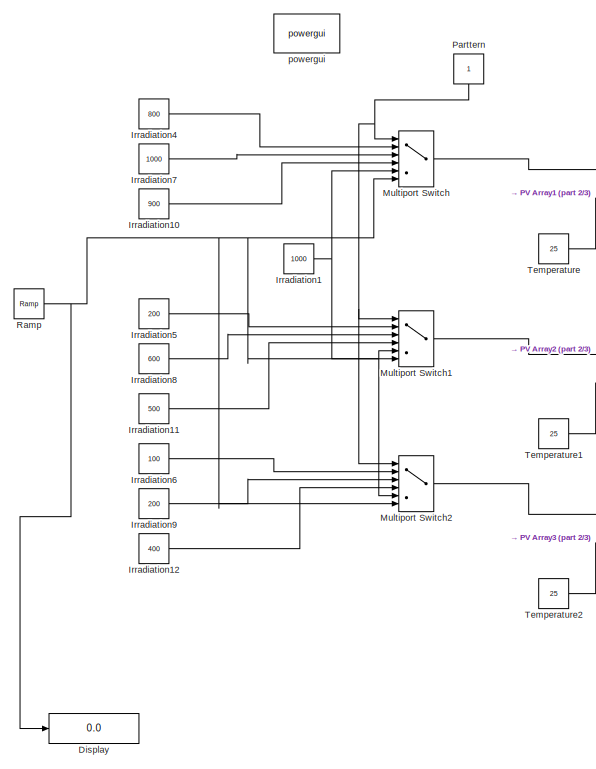
[diagram: root canvas - part 1/3, left side, full height]
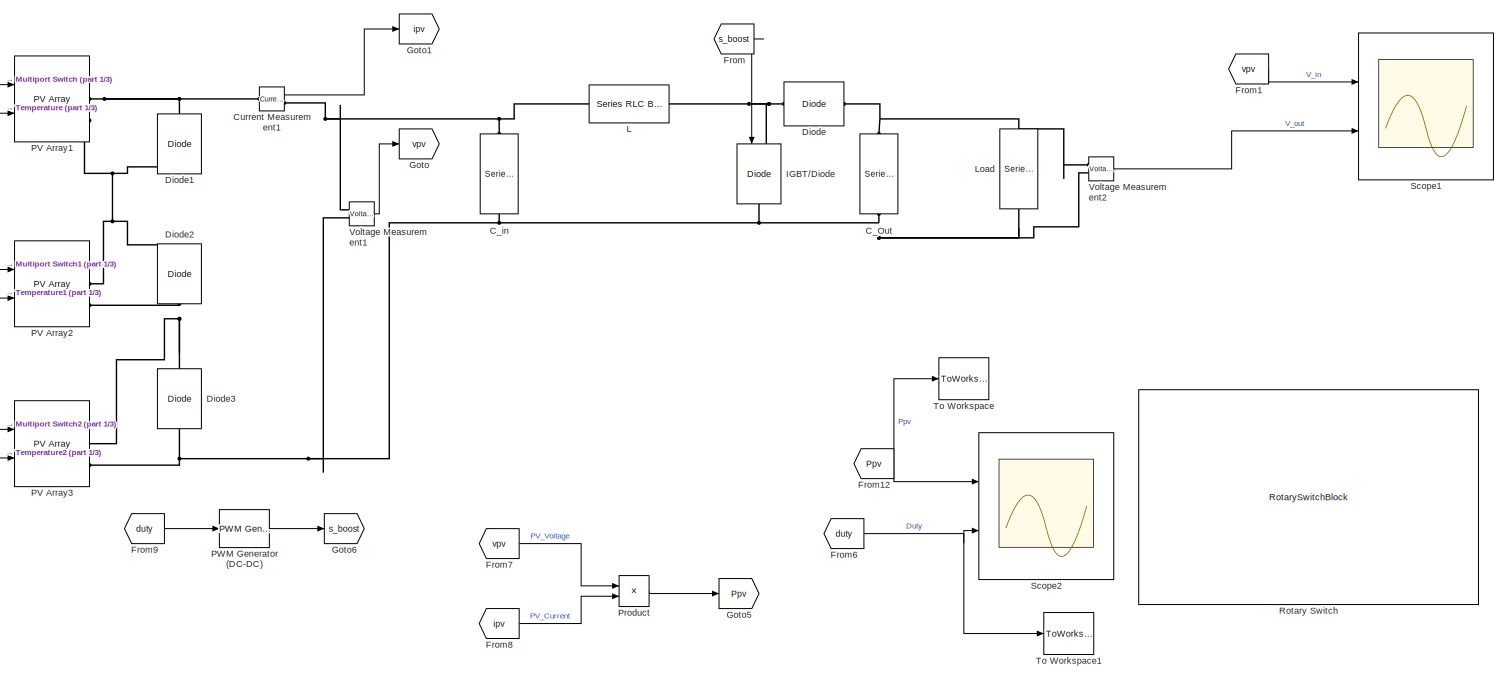
[diagram: root canvas - part 2/3, center side, full height]
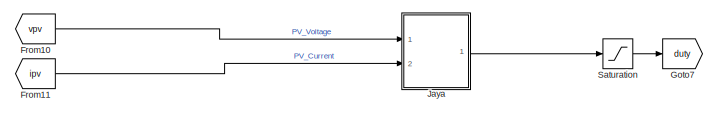
[diagram: root canvas - part 3/3, bottom center region]
MODEL slx_bde8f6ef2857
KIND model
CONFIG AbsTol = auto
CONFIG EnableMultiTasking = off
CONFIG FixedStep = auto
CONFIG MaxStep = auto
CONFIG MinStep = auto
CONFIG RelTol = 1e-4
CONFIG SampleTimeConstraint = Unconstrained
CONFIG Solver = VariableStepAuto
CONFIG SolverName = VariableStepAuto
CONFIG StartTime = 0.0
CONFIG StopTime = 0.3
BLOCK [Reference] C_Out  REF=powerlib/Elements/Series RLC Branch
  NameLocation = left
  Ports = [0, 0, 0, 0, 0, 1, 1]
  SourceBlock = powerlib/Elements/Series RLC Branch
  SourceProductBaseCode = PS
  SourceType = Series RLC Branch
BLOCK [Reference] C_in  REF=powerlib/Elements/Series RLC Branch
  NameLocation = left
  Ports = [0, 0, 0, 0, 0, 1, 1]
  SourceBlock = powerlib/Elements/Series RLC Branch
  SourceProductBaseCode = PS
  SourceType = Series RLC Branch
BLOCK [Reference] Current Measurement1  REF=powerlib/Measurements/Current Measurement
  Ports = [0, 1, 0, 0, 0, 1, 1]
  SourceBlock = powerlib/Measurements/Current Measurement
  SourceProductBaseCode = PS
  SourceType = Current Measurement
  UserDataPersistent = on
BLOCK [Reference] Diode  REF=powerlib/Power
Electronics/Diode
  Ports = [0, 0, 0, 0, 0, 1, 1]
  SourceBlock = powerlib/Power\nElectronics/Diode
  SourceProductBaseCode = PS
  SourceType = Diode
BLOCK [Reference] Diode1  REF=powerlib/Power
Electronics/Diode
  NameLocation = right
  Ports = [0, 0, 0, 0, 0, 1, 1]
  SourceBlock = powerlib/Power\nElectronics/Diode
  SourceProductBaseCode = PS
  SourceType = Diode
BLOCK [Reference] Diode2  REF=powerlib/Power
Electronics/Diode
  NameLocation = right
  Ports = [0, 0, 0, 0, 0, 1, 1]
  SourceBlock = powerlib/Power\nElectronics/Diode
  SourceProductBaseCode = PS
  SourceType = Diode
BLOCK [Reference] Diode3  REF=powerlib/Power
Electronics/Diode
  NameLocation = right
  Ports = [0, 0, 0, 0, 0, 1, 1]
  SourceBlock = powerlib/Power\nElectronics/Diode
  SourceProductBaseCode = PS
  SourceType = Diode
BLOCK [Display] Display
  Decimation = 1
  Ports = [1]
BLOCK [From] From
  GotoTag = s_boost
  TagVisibility = global
BLOCK [From] From1
  GotoTag = vpv
  TagVisibility = global
BLOCK [From] From10
  GotoTag = vpv
  TagVisibility = global
BLOCK [From] From11
  GotoTag = ipv
  TagVisibility = global
BLOCK [From] From12
  GotoTag = Ppv
  TagVisibility = global
BLOCK [From] From6
  GotoTag = duty
  TagVisibility = global
BLOCK [From] From7
  GotoTag = vpv
  TagVisibility = global
BLOCK [From] From8
  GotoTag = ipv
  TagVisibility = global
BLOCK [From] From9
  GotoTag = duty
  TagVisibility = global
BLOCK [Goto] Goto
  GotoTag = vpv
  TagVisibility = global
BLOCK [Goto] Goto1
  GotoTag = ipv
  TagVisibility = global
BLOCK [Goto] Goto5
  GotoTag = Ppv
  TagVisibility = global
BLOCK [Goto] Goto6
  GotoTag = s_boost
  TagVisibility = global
BLOCK [Goto] Goto7
  GotoTag = duty
  TagVisibility = global
BLOCK [Reference] IGBT//Diode  REF=powerlib/Power
Electronics/IGBT//Diode
  NameLocation = left
  Ports = [1, 0, 0, 0, 0, 1, 1]
  SourceBlock = powerlib/Power\nElectronics/IGBT//Diode
  SourceProductBaseCode = PS
  SourceType = IGBT/Diode
BLOCK [Constant] Irradiation1
  Value = 1000
BLOCK [Constant] Irradiation10
  Value = 900
BLOCK [Constant] Irradiation11
  Value = 500
BLOCK [Constant] Irradiation12
  Value = 400
BLOCK [Constant] Irradiation4
  Value = 800
BLOCK [Constant] Irradiation5
  Value = 200
BLOCK [Constant] Irradiation6
  Value = 100
BLOCK [Constant] Irradiation7
  Value = 1000
BLOCK [Constant] Irradiation8
  Value = 600
BLOCK [Constant] Irradiation9
  Value = 200
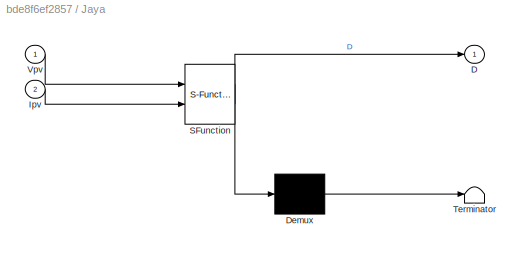
BLOCK [SubSystem] Jaya
  ErrorFcn = Stateflow.Translate.translate
  PermitHierarchicalResolution = ExplicitOnly
  Ports = [2, 1]
  RequestExecContextInheritance = off
  SFBlockType = MATLAB Function
  TreatAsAtomicUnit = on
BLOCK [Demux] Jaya/ Demux 
  Outputs = 1
  Ports = [1, 1]
BLOCK [S-Function] Jaya/ SFunction 
  EnableBusSupport = on
  FunctionName = sf_sfun
  PortCounts = [2 2]
  Ports = [2, 2]
  SFcnIsStateOwnerBlock = off
  SFunctionDeploymentMode = off
  Tag = Stateflow S-Function 3
BLOCK [Terminator] Jaya/ Terminator 
BLOCK [Outport] Jaya/D
  VectorParamsAs1DForOutWhenUnconnected = off
BLOCK [Inport] Jaya/Ipv
  Port = 2
BLOCK [Inport] Jaya/Vpv
BLOCK [Reference] L  REF=powerlib/Elements/Series RLC Branch
  Ports = [0, 0, 0, 0, 0, 1, 1]
  SourceBlock = powerlib/Elements/Series RLC Branch
  SourceProductBaseCode = PS
  SourceType = Series RLC Branch
BLOCK [Reference] Load  REF=powerlib/Elements/Series RLC Branch
  NameLocation = left
  Ports = [0, 0, 0, 0, 0, 1, 1]
  SourceBlock = powerlib/Elements/Series RLC Branch
  SourceProductBaseCode = PS
  SourceType = Series RLC Branch
BLOCK [MultiPortSwitch] Multiport Switch
  InputSameDT = off
  Inputs = 5
  Ports = [6, 1]
  SaturateOnIntegerOverflow = off
BLOCK [MultiPortSwitch] Multiport Switch1
  InputSameDT = off
  Inputs = 5
  Ports = [6, 1]
  SaturateOnIntegerOverflow = off
BLOCK [MultiPortSwitch] Multiport Switch2
  InputSameDT = off
  Inputs = 5
  Ports = [6, 1]
  SaturateOnIntegerOverflow = off
BLOCK [Reference] PV Array1  REF=re_lib/Solar/PV Array
  Ports = [2, 1, 0, 0, 0, 0, 2]
  SourceBlock = re_lib/Solar/PV Array
  SourceProductBaseCode = PS
  SourceType = PV array
BLOCK [Reference] PV Array2  REF=re_lib/Solar/PV Array
  Ports = [2, 1, 0, 0, 0, 0, 2]
  SourceBlock = re_lib/Solar/PV Array
  SourceProductBaseCode = PS
  SourceType = PV array
BLOCK [Reference] PV Array3  REF=re_lib/Solar/PV Array
  Ports = [2, 1, 0, 0, 0, 0, 2]
  SourceBlock = re_lib/Solar/PV Array
  SourceProductBaseCode = PS
  SourceType = PV array
BLOCK [Reference] PWM Generator (DC-DC)  REF=powerlib_meascontrol/Pulse & Signal
Generators/PWM Generator
(DC-DC)
  Ports = [1, 1]
  SourceBlock = powerlib_meascontrol/Pulse & Signal\nGenerators/PWM Generator\n(DC-DC)
  SourceProductBaseCode = PS
  SourceType = PWM Generator (DC-DC)
BLOCK [Constant] Parttern 
  NameLocation = left
BLOCK [Product] Product
  Ports = [2, 1]
BLOCK [Reference] Ramp  REF=simulink/Sources/Ramp
  Ports = [0, 1]
  SourceBlock = simulink/Sources/Ramp
  SourceProductBaseCode = SL
  SourceType = Ramp
BLOCK [RotarySwitchBlock] Rotary Switch
BLOCK [Saturate] Saturation
  LowerLimit = 0
  UpperLimit = 1
BLOCK [Scope] Scope1
  Floating = off
  NumInputPorts = 2
  Ports = [2]
  ScopeSpecificationString = Simulink.scopes.TimeScopeBlockCfg('CurrentConfiguration', extmgr.ConfigurationSet(extmgr.Configuration('Core','General UI',true,'FigureColor',[1 1 1]),extmgr.Configuration('Core','Source UI',true),extmgr.Configuration('Sources','WiredSimulink',true,'DataLoggingVariableName','ScopeData1'),extmgr.Configuration('Visuals','Time Domain',true,'PlotType','Line','SerializedDisplays',{struct('MinYLimReal',...<+2507ch>
BLOCK [Scope] Scope2
  Floating = off
  NumInputPorts = 2
  Ports = [2]
  ScopeSpecificationString = Simulink.scopes.TimeScopeBlockCfg('CurrentConfiguration', extmgr.ConfigurationSet(extmgr.Configuration('Core','General UI',true,'FigureColor',[1 1 1]),extmgr.Configuration('Core','Source UI',true),extmgr.Configuration('Sources','WiredSimulink',true,'DataLoggingVariableName','ScopeData1'),extmgr.Configuration('Visuals','Time Domain',true,'PlotType','Line','SerializedDisplays',{struct('MinYLimReal',...<+2534ch>
BLOCK [Constant] Temperature
  Value = 25
BLOCK [Constant] Temperature1
  Value = 25
BLOCK [Constant] Temperature2
  Value = 25
BLOCK [ToWorkspace] To Workspace
  MaxDataPoints = inf
  Ports = [1]
  SampleTime = -1
  Save2DSignal = 2-D array (concatenate along first dimension)
  SaveFormat = Timeseries
  VariableName = Ppv
BLOCK [ToWorkspace] To Workspace1
  MaxDataPoints = inf
  Ports = [1]
  SampleTime = -1
  Save2DSignal = 2-D array (concatenate along first dimension)
  SaveFormat = Timeseries
  VariableName = duty
BLOCK [Reference] Voltage Measurement1  REF=powerlib/Measurements/Voltage Measurement
  Ports = [0, 1, 0, 0, 0, 2]
  SourceBlock = powerlib/Measurements/Voltage Measurement
  SourceProductBaseCode = PS
  SourceType = Voltage Measurement
  UserDataPersistent = on
BLOCK [Reference] Voltage Measurement2  REF=powerlib/Measurements/Voltage Measurement
  Ports = [0, 1, 0, 0, 0, 2]
  SourceBlock = powerlib/Measurements/Voltage Measurement
  SourceProductBaseCode = PS
  SourceType = Voltage Measurement
  UserDataPersistent = on
BLOCK [Reference] powergui  REF=powerlib/powergui
  Ports = []
  Priority = 1
  SourceBlock = powerlib/powergui
  SourceProductBaseCode = PS
  SourceType = PSB option menu block
LINE Current Measurement1:1 -> Goto1:1
LINE From10:1 -> Jaya:1
LINE From11:1 -> Jaya:2
NET From12:1 -> Scope2:1, To Workspace:1
LINE From1:1 -> Scope1:1
NET From6:1 -> Scope2:2, To Workspace1:1
LINE From7:1 -> Product:1
LINE From8:1 -> Product:2
LINE From9:1 -> PWM Generator (DC-DC):1
LINE From:1 -> IGBT//Diode:1
LINE Irradiation10:1 -> Multiport Switch:4
LINE Irradiation11:1 -> Multiport Switch1:4
LINE Irradiation12:1 -> Multiport Switch2:4
NET Irradiation1:1 -> Multiport Switch1:5, Multiport Switch2:5, Multiport Switch:5
LINE Irradiation4:1 -> Multiport Switch:2
LINE Irradiation5:1 -> Multiport Switch1:2
LINE Irradiation6:1 -> Multiport Switch2:2
LINE Irradiation7:1 -> Multiport Switch:3
LINE Irradiation8:1 -> Multiport Switch1:3
LINE Irradiation9:1 -> Multiport Switch2:3
LINE Jaya:1 -> Saturation:1
LINE Multiport Switch1:1 -> PV Array2:1
LINE Multiport Switch2:1 -> PV Array3:1
LINE Multiport Switch:1 -> PV Array1:1
LINE PWM Generator (DC-DC):1 -> Goto6:1
NET Parttern :1 -> Multiport Switch1:1, Multiport Switch2:1, Multiport Switch:1
LINE Product:1 -> Goto5:1
NET Ramp:1 -> Display:1, Multiport Switch1:6, Multiport Switch2:6, Multiport Switch:6
LINE Saturation:1 -> Goto7:1
LINE Temperature1:1 -> PV Array2:2
LINE Temperature2:1 -> PV Array3:2
LINE Temperature:1 -> PV Array1:2
LINE Voltage Measurement1:1 -> Goto:1
LINE Voltage Measurement2:1 -> Scope1:2
PNET net1: C_Out:LConn1 -- Diode:RConn1 -- Load:LConn1 -- Voltage Measurement2:LConn1
PNET net2: C_Out:RConn1 -- C_in:RConn1 -- Diode3:LConn1 -- IGBT//Diode:RConn1 -- Load:RConn1 -- PV Array3:RConn2 -- Voltage Measurement1:LConn2 -- Voltage Measurement2:LConn2
PNET net3: C_in:LConn1 -- Current Measurement1:RConn1 -- L:LConn1 -- Voltage Measurement1:LConn1
PNET net4: Current Measurement1:LConn1 -- Diode1:RConn1 -- PV Array1:RConn1
PNET net5: Diode1:LConn1 -- Diode2:RConn1 -- PV Array1:RConn2 -- PV Array2:RConn1
PNET net6: Diode2:LConn1 -- Diode3:RConn1 -- PV Array2:RConn2 -- PV Array3:RConn1
PNET net7: Diode:LConn1 -- IGBT//Diode:LConn1 -- L:RConn1
note: NET lines group one-source signal fan-out (src -> all destinations, sorted); 1:1 wires keep LINE; PNET lines group multi-terminal physical nets as a canonical sorted terminal list (undirected conserving connections); 2-terminal nets keep the pairwise PLINE form
CHART Jaya states=1 transitions=1
  STATE_LABEL 'eML_blk_kernel()'
  STATE_LABEL "SCRIPT:\nfunction D = Jaya(Vpv, Ipv)\n    coder.extrinsic('randi')\n    \n    persistent k p dc dcPrev Pbest Pprev dcurrent u ;\n    P = Ipv * Vpv;\n    if isempty(dc)\n        k = 0;\n        dc = zeros(3,1);\n\n        dc(1)=randi( [5 330])/1000;\n        dc(2)=randi( [330 660])/1000;\n        dc(3)=randi( [660 995])/1000;\n        \n        dcPrev = dc;\n        p = zeros(3,1);\n        Pbest = Ipv * Vpv;\n    ...<+1228ch>"
CHART  states=0 transitions=0
